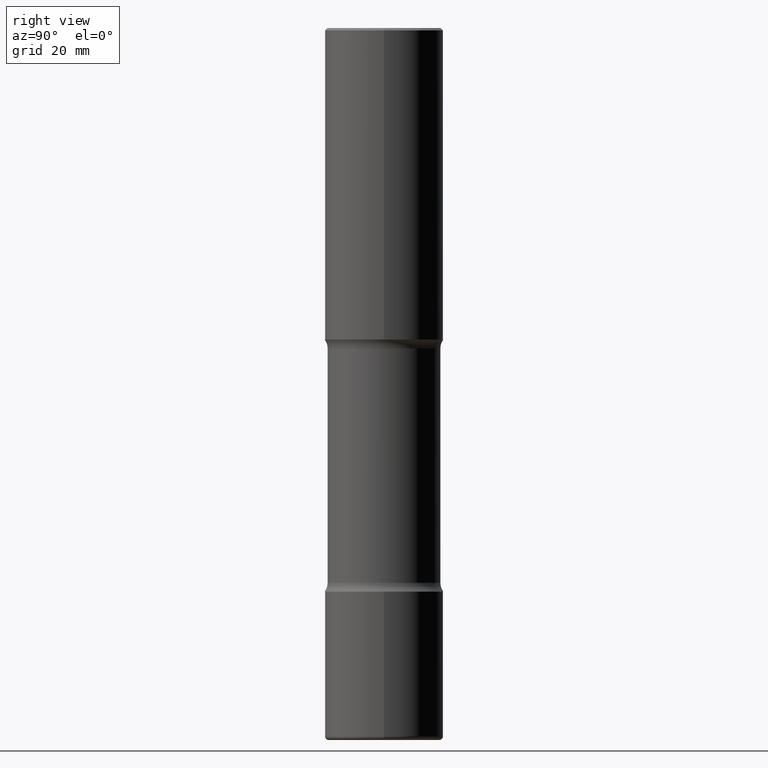
[diagram: clean part render]
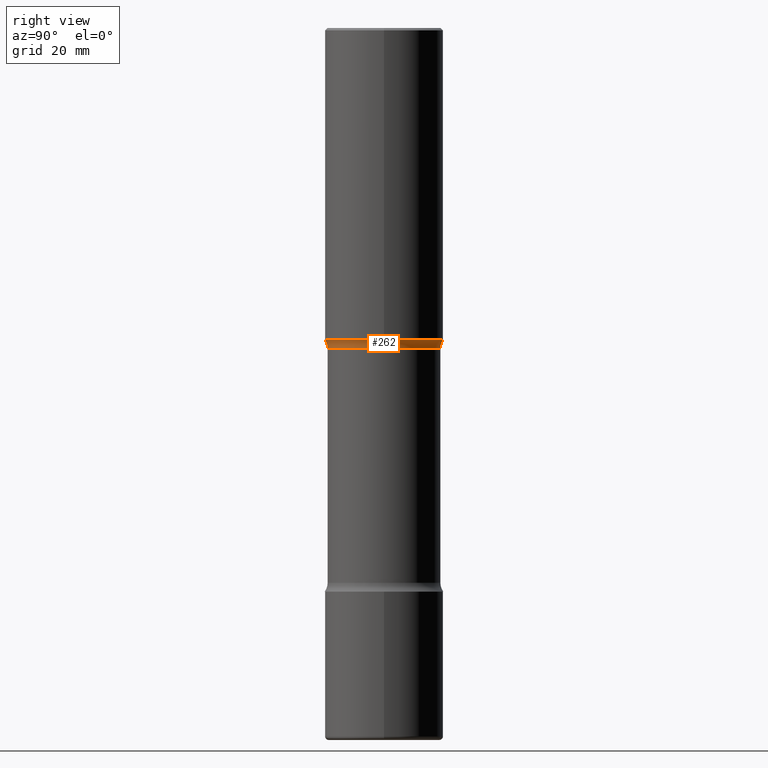
[diagram: same view with one face highlighted and labeled with its STEP entity id]
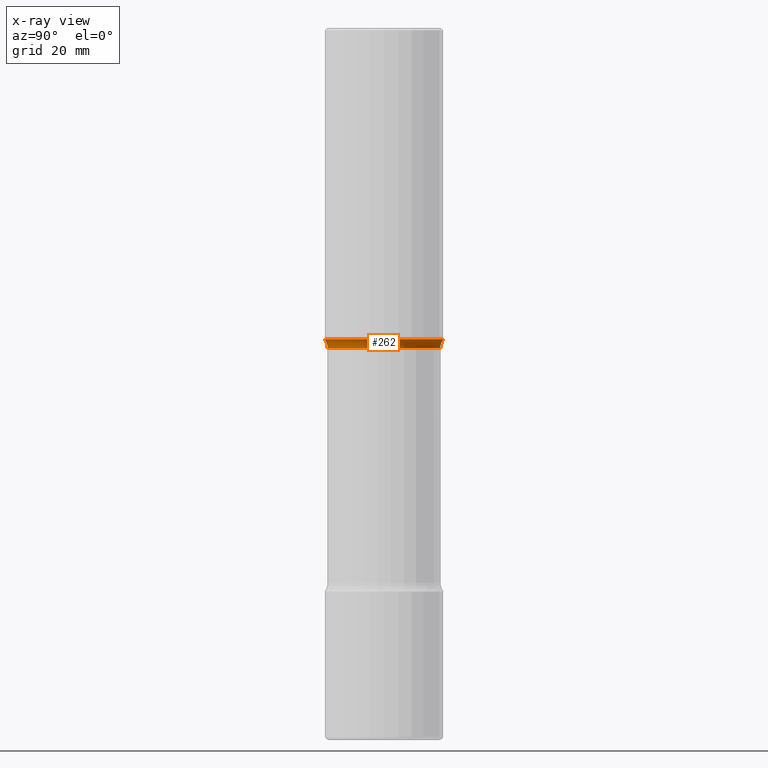
[diagram: x-ray of the same camera — body ghosted, the highlighted face saturated]
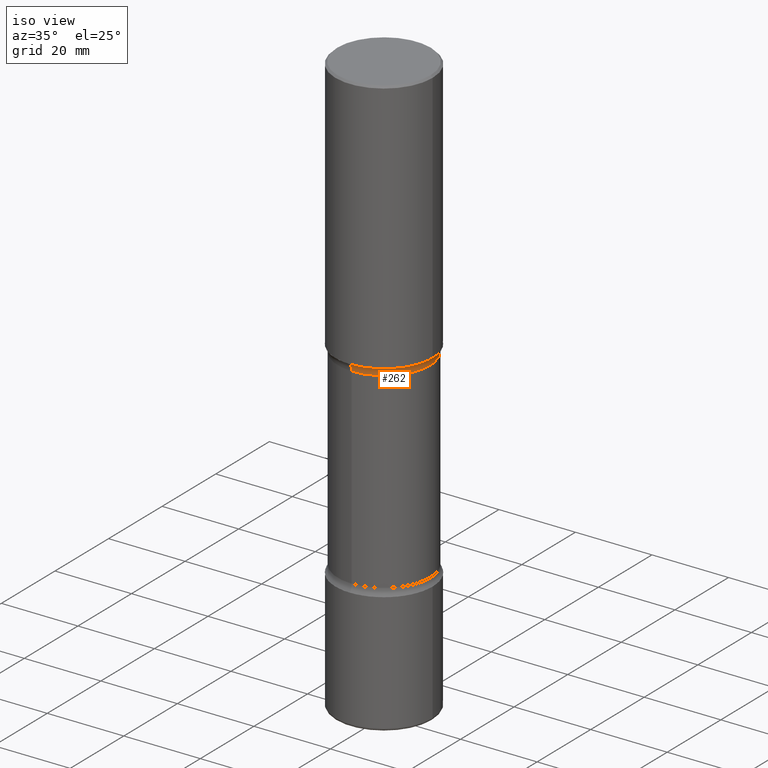
[diagram: same view with one face highlighted and labeled with its STEP entity id]
A machine part, right view. The second image highlights one B-rep face of the part: STEP entity #262.
The next image is the same camera in x-ray: the body ghosted, the highlighted face saturated — about 0% of this face is hidden behind the body in this view.
A second angle (iso view) of the same face is appended — the face is thin or edge-on in the first view.
In plain terms, the highlighted toroidal blend (fillet) surface has major radius 15.24 mm and minor (blend) radius 3.175 mm.
Its self-contained STEP definition (entity closure, byte-faithful):
#29 = TOROIDAL_SURFACE ( 'NONE', #530, 0.5999999999999999778, 0.1249999999999999584 ) ;
#50 = VERTEX_POINT ( 'NONE', #279 ) ;
#61 = CARTESIAN_POINT ( 'NONE',  ( -3.430248998885706617E-15, -0.5000000000000099920, -2.624999999999999556 ) ) ;
#69 = CIRCLE ( 'NONE', #465, 0.1249999999999999584 ) ;
#71 = ORIENTED_EDGE ( 'NONE', *, *, #201, .T. ) ;
#98 = CIRCLE ( 'NONE', #307, 0.1249999999999999584 ) ;
#101 = VERTEX_POINT ( 'NONE', #456 ) ;
#114 = ORIENTED_EDGE ( 'NONE', *, *, #221, .T. ) ;
#134 = DIRECTION ( 'NONE',  ( 6.982962677686265133E-15, 1.000000000000000000, -3.379601449890201672E-15 ) ) ;
#152 = DIRECTION ( 'NONE',  ( 1.000000000000000000, -6.860497997771530774E-15, 4.842169013103094469E-29 ) ) ;
#171 = AXIS2_PLACEMENT_3D ( 'NONE', #188, #421, #426 ) ;
#180 = CARTESIAN_POINT ( 'NONE',  ( 6.459692832343351385E-29, -9.631888214401318406E-15, -2.700000000000001954 ) ) ;
#188 = CARTESIAN_POINT ( 'NONE',  ( 6.253339334835791142E-29, -9.402883278488267648E-15, -2.625000000000000888 ) ) ;
#201 = EDGE_CURVE ( 'NONE', #514, #408, #213, .T. ) ;
#203 = DIRECTION ( 'NONE',  ( 6.860497997771532351E-15, 1.000000000000000000, 0.000000000000000000 ) ) ;
#213 = CIRCLE ( 'NONE', #171, 0.5000000000000005551 ) ;
#221 = EDGE_CURVE ( 'NONE', #50, #514, #69, .T. ) ;
#224 = CIRCLE ( 'NONE', #517, 0.4749999999999999778 ) ;
#226 = DIRECTION ( 'NONE',  ( -1.000000000000000000, 6.982962677686265922E-15, -4.883557194083112340E-29 ) ) ;
#262 = ADVANCED_FACE ( 'NONE', ( #343 ), #29, .F. ) ;
#275 = ORIENTED_EDGE ( 'NONE', *, *, #541, .F. ) ;
#279 = CARTESIAN_POINT ( 'NONE',  ( 3.316907271901040585E-15, 0.4749999999999903744, -2.700000000000003286 ) ) ;
#307 = AXIS2_PLACEMENT_3D ( 'NONE', #324, #152, #203 ) ;
#315 = ORIENTED_EDGE ( 'NONE', *, *, #444, .F. ) ;
#316 = DIRECTION ( 'NONE',  ( 2.523594115079346016E-29, -3.379601449890201278E-15, -1.000000000000000000 ) ) ;
#324 = CARTESIAN_POINT ( 'NONE',  ( -4.116298798662853620E-15, -0.6000000000000096367, -2.699999999999999734 ) ) ;
#343 = FACE_OUTER_BOUND ( 'NONE', #451, .T. ) ;
#348 = CARTESIAN_POINT ( 'NONE',  ( 4.189777606611823924E-15, 0.5999999999999903189, -2.700000000000004174 ) ) ;
#364 = CARTESIAN_POINT ( 'NONE',  ( 3.491481338843199225E-15, 0.4999999999999911182, -2.625000000000002665 ) ) ;
#408 = VERTEX_POINT ( 'NONE', #61 ) ;
#421 = DIRECTION ( 'NONE',  ( 2.523594115079346016E-29, -3.379601449890201278E-15, -1.000000000000000000 ) ) ;
#426 = DIRECTION ( 'NONE',  ( 6.982962677686266711E-15, 1.000000000000000000, -3.278217592397112312E-15 ) ) ;
#437 = DIRECTION ( 'NONE',  ( 6.982962677686265133E-15, 1.000000000000000000, -3.450755360418016739E-15 ) ) ;
#444 = EDGE_CURVE ( 'NONE', #101, #408, #98, .T. ) ;
#451 = EDGE_LOOP ( 'NONE', ( #315, #275, #114, #71 ) ) ;
#456 = CARTESIAN_POINT ( 'NONE',  ( -3.344492773913559396E-15, -0.4750000000000096367, -2.700000000000000178 ) ) ;
#465 = AXIS2_PLACEMENT_3D ( 'NONE', #348, #226, #515 ) ;
#514 = VERTEX_POINT ( 'NONE', #364 ) ;
#515 = DIRECTION ( 'NONE',  ( -6.982962677686265133E-15, -1.000000000000000000, 0.000000000000000000 ) ) ;
#517 = AXIS2_PLACEMENT_3D ( 'NONE', #521, #316, #437 ) ;
#521 = CARTESIAN_POINT ( 'NONE',  ( 6.442608893466743677E-29, -9.656353387230035032E-15, -2.700000000000001954 ) ) ;
#530 = AXIS2_PLACEMENT_3D ( 'NONE', #180, #555, #134 ) ;
#541 = EDGE_CURVE ( 'NONE', #50, #101, #224, .T. ) ;
#555 = DIRECTION ( 'NONE',  ( 2.523594115079346016E-29, -3.379601449890201278E-15, -1.000000000000000000 ) ) ;